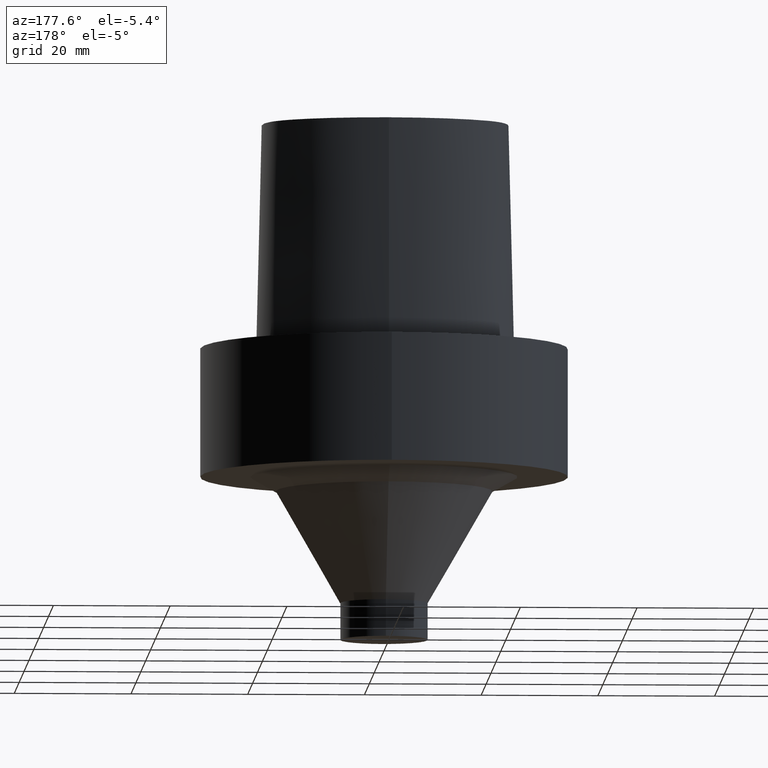
[diagram: clean part render]
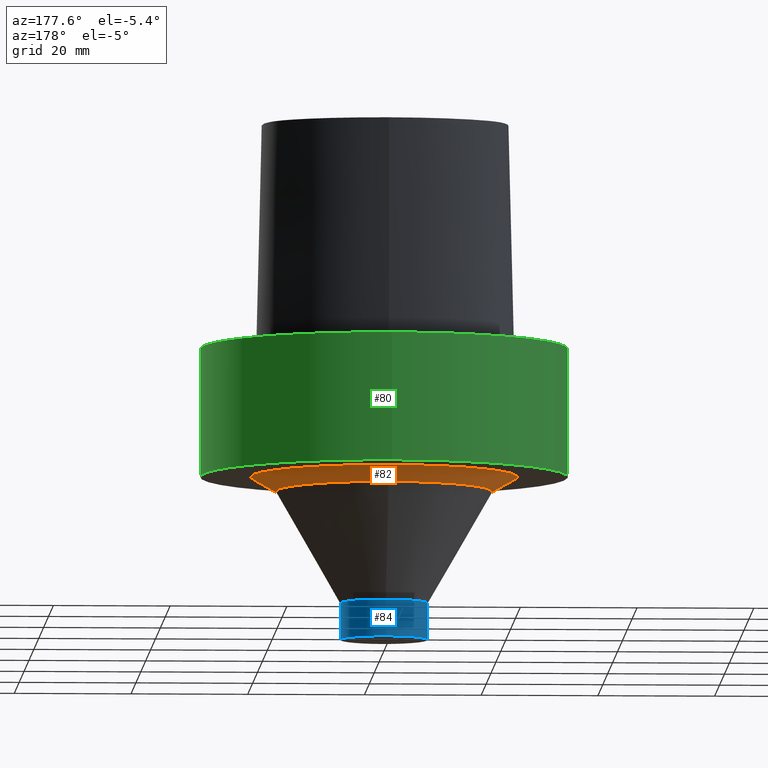
[diagram: same view with three faces highlighted in distinct colors, each labeled with its STEP entity id]
A machine part, auxiliary view with three faces highlighted in distinct colors.
Their STEP definitions:

[orange] entity #82 — the highlighted conical surface has half-angle 60.12 deg.
#82=ADVANCED_FACE('',(#104,#105),#106,.T.);
#104=FACE_BOUND('',#270,.T.);
#105=FACE_BOUND('',#271,.T.);
#106=CONICAL_SURFACE('',#272,20.712996375,1.04929210050062);
#270=EDGE_LOOP('',(#317));
#271=EDGE_LOOP('',(#318));
#272=AXIS2_PLACEMENT_3D('',#319,#320,#321);
#317=ORIENTED_EDGE('',*,*,#347,.F.);
#318=ORIENTED_EDGE('',*,*,#346,.T.);
#319=CARTESIAN_POINT('',(1.4230972204478E-015,2.84619444089559E-015,-23.24094133));
#320=DIRECTION('',(-6.12323399573677E-017,-1.22464679914735E-016,1.0));
#321=DIRECTION('',(-1.23259516440783E-032,1.0,1.22464679914735E-016));
#346=EDGE_CURVE('',#367,#367,#368,.T.);
#347=EDGE_CURVE('',#369,#369,#370,.T.);
#367=VERTEX_POINT('',#458);
#368=CIRCLE('',#459,22.87280453);
#369=VERTEX_POINT('',#460);
#370=CIRCLE('',#461,18.55318822);
#458=CARTESIAN_POINT('',(1.34711147906209E-015,22.87280453,-22.0));
#459=AXIS2_PLACEMENT_3D('',#478,#479,#480);
#460=CARTESIAN_POINT('',(1.4990829618335E-015,18.55318822,-24.48188266));
#461=AXIS2_PLACEMENT_3D('',#481,#482,#483);
#478=CARTESIAN_POINT('',(1.34711147906209E-015,2.69422295812418E-015,-22.0));
#479=DIRECTION('',(6.12323399573677E-017,1.22464679914735E-016,-1.0));
#480=DIRECTION('',(-1.23259516440783E-032,1.0,1.22464679914735E-016));
#481=CARTESIAN_POINT('',(1.4990829618335E-015,2.99816592366701E-015,-24.48188266));
#482=DIRECTION('',(6.12323399573677E-017,1.22464679914735E-016,-1.0));
#483=DIRECTION('',(-1.23259516440783E-032,1.0,1.22464679914735E-016));

[blue] entity #84 — the highlighted cylindrical surface (bore or boss wall) has radius 7.5 mm, axis along (-0, -0, 1).
#84=ADVANCED_FACE('',(#110,#111),#112,.T.);
#110=FACE_BOUND('',#276,.T.);
#111=FACE_BOUND('',#277,.T.);
#112=CYLINDRICAL_SURFACE('',#278,7.5);
#276=EDGE_LOOP('',(#327));
#277=EDGE_LOOP('',(#328));
#278=AXIS2_PLACEMENT_3D('',#329,#330,#331);
#327=ORIENTED_EDGE('',*,*,#349,.F.);
#328=ORIENTED_EDGE('',*,*,#348,.T.);
#329=CARTESIAN_POINT('',(2.86873512700268E-015,5.73747025400535E-015,-46.85));
#330=DIRECTION('',(-6.12323399573677E-017,-1.22464679914735E-016,1.0));
#331=DIRECTION('',(-1.23259516440783E-032,1.0,1.22464679914735E-016));
#348=EDGE_CURVE('',#371,#371,#372,.T.);
#349=EDGE_CURVE('',#373,#373,#374,.T.);
#371=VERTEX_POINT('',#462);
#372=CIRCLE('',#463,7.5);
#373=VERTEX_POINT('',#464);
#374=CIRCLE('',#465,7.5);
#462=CARTESIAN_POINT('',(2.67585325613697E-015,7.50000000000001,-43.7));
#463=AXIS2_PLACEMENT_3D('',#484,#485,#486);
#464=CARTESIAN_POINT('',(3.06161699786838E-015,7.50000000000001,-50.0));
#465=AXIS2_PLACEMENT_3D('',#487,#488,#489);
#484=CARTESIAN_POINT('',(2.67585325613697E-015,5.35170651227393E-015,-43.7));
#485=DIRECTION('',(6.12323399573677E-017,1.22464679914735E-016,-1.0));
#486=DIRECTION('',(-1.23259516440783E-032,1.0,1.22464679914735E-016));
#487=CARTESIAN_POINT('',(3.06161699786838E-015,6.12323399573676E-015,-50.0));
#488=DIRECTION('',(6.12323399573677E-017,1.22464679914735E-016,-1.0));
#489=DIRECTION('',(-1.23259516440783E-032,1.0,1.22464679914735E-016));

[green] entity #80 — the highlighted cylindrical surface (bore or boss wall) has radius 31.4925 mm, axis along (-0, -0, 1).
#80=ADVANCED_FACE('',(#98,#99),#100,.T.);
#98=FACE_BOUND('',#264,.T.);
#99=FACE_BOUND('',#265,.T.);
#100=CYLINDRICAL_SURFACE('',#266,31.4925);
#264=EDGE_LOOP('',(#307));
#265=EDGE_LOOP('',(#308));
#266=AXIS2_PLACEMENT_3D('',#309,#310,#311);
#307=ORIENTED_EDGE('',*,*,#345,.F.);
#308=ORIENTED_EDGE('',*,*,#344,.T.);
#309=CARTESIAN_POINT('',(6.73555739531044E-016,1.34711147906209E-015,-11.0));
#310=DIRECTION('',(-6.12323399573677E-017,-1.22464679914735E-016,1.0));
#311=DIRECTION('',(-1.23259516440783E-032,1.0,1.22464679914735E-016));
#344=EDGE_CURVE('',#363,#363,#364,.T.);
#345=EDGE_CURVE('',#365,#365,#366,.T.);
#363=VERTEX_POINT('',#454);
#364=CIRCLE('',#455,31.4925);
#365=VERTEX_POINT('',#456);
#366=CIRCLE('',#457,31.4925);
#454=CARTESIAN_POINT('',(-3.88175032151136E-031,31.4925,3.8567189322148E-015));
#455=AXIS2_PLACEMENT_3D('',#472,#473,#474);
#456=CARTESIAN_POINT('',(1.34711147906209E-015,31.4925,-22.0));
#457=AXIS2_PLACEMENT_3D('',#475,#476,#477);
#472=CARTESIAN_POINT('',(0.0,0.0,0.0));
#473=DIRECTION('',(6.12323399573677E-017,1.22464679914735E-016,-1.0));
#474=DIRECTION('',(-1.23259516440783E-032,1.0,1.22464679914735E-016));
#475=CARTESIAN_POINT('',(1.34711147906209E-015,2.69422295812418E-015,-22.0));
#476=DIRECTION('',(6.12323399573677E-017,1.22464679914735E-016,-1.0));
#477=DIRECTION('',(-1.23259516440783E-032,1.0,1.22464679914735E-016));